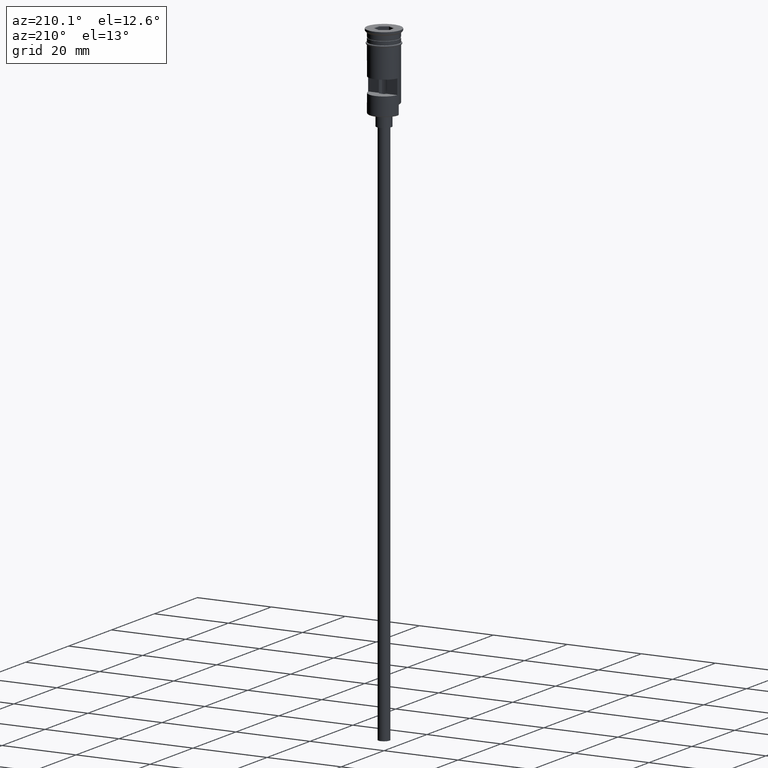
[diagram: clean part render]
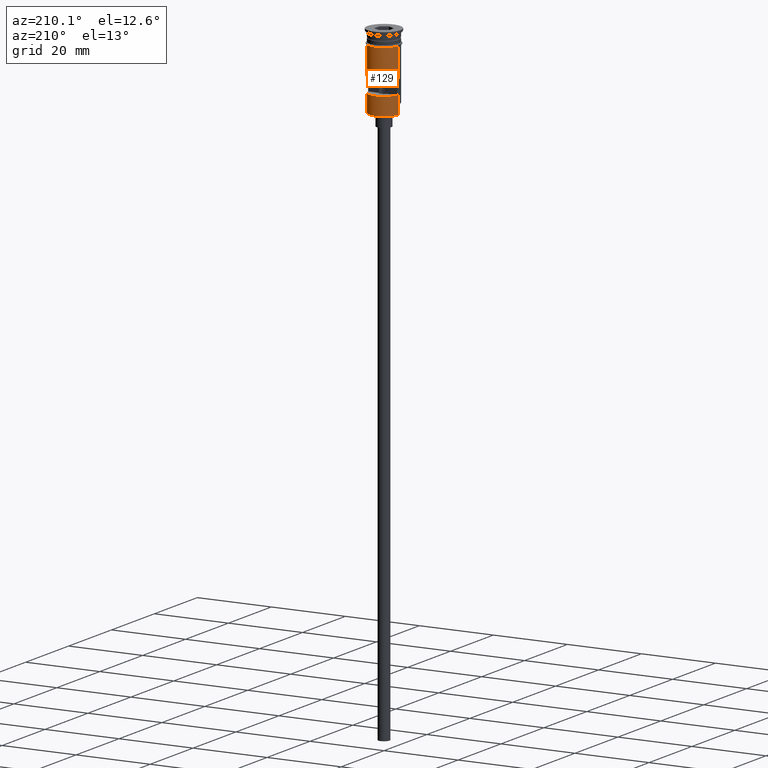
[diagram: same view with one face highlighted and labeled with its STEP entity id]
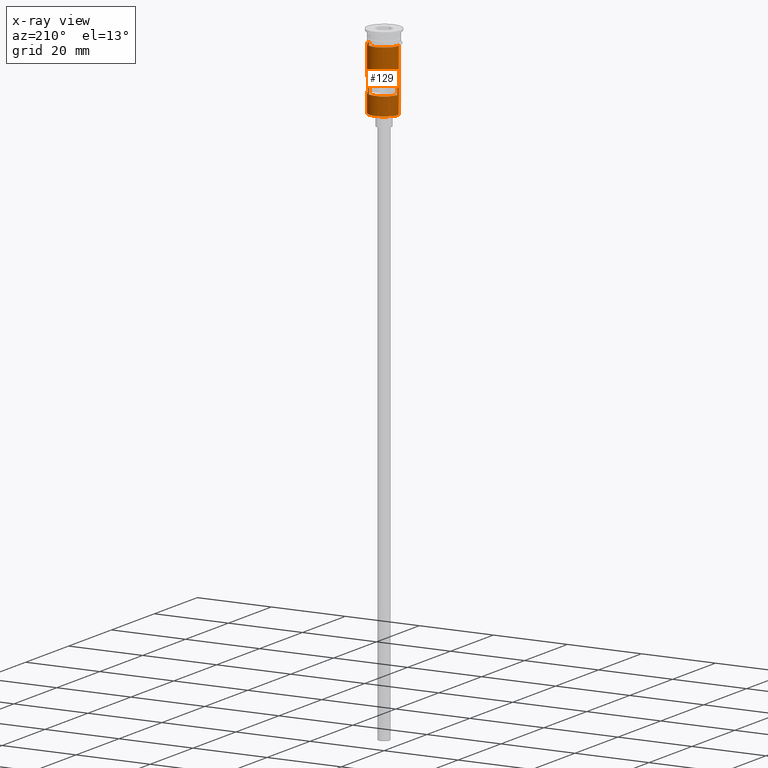
[diagram: x-ray of the same camera — body ghosted, the highlighted face saturated]
A machine part, auxiliary view. The second image highlights one B-rep face of the part: STEP entity #129.
The next image is the same camera in x-ray: the body ghosted, the highlighted face saturated — about 0% of this face is hidden behind the body in this view.
In plain terms, the highlighted cylindrical surface (edge-blend (fillet) strip) has radius 4 mm, axis along (-0, -0, 1).
Its self-contained STEP definition (entity closure, byte-faithful):
#7 = LINE ( 'NONE', #990, #341 ) ;
#44 = LINE ( 'NONE', #1409, #808 ) ;
#60 = ORIENTED_EDGE ( 'NONE', *, *, #1400, .T. ) ;
#82 = ORIENTED_EDGE ( 'NONE', *, *, #511, .F. ) ;
#97 = FACE_OUTER_BOUND ( 'NONE', #214, .T. ) ;
#112 = EDGE_CURVE ( 'NONE', #1268, #509, #830, .T. ) ;
#120 = CARTESIAN_POINT ( 'NONE',  ( 0.000000000000000000, 0.000000000000000000, -20.29999999999997584 ) ) ;
#129 = ADVANCED_FACE ( 'NONE', ( #1595, #97 ), #216, .T. ) ;
#133 = AXIS2_PLACEMENT_3D ( 'NONE', #208, #608, #981 ) ;
#157 = AXIS2_PLACEMENT_3D ( 'NONE', #715, #1211, #482 ) ;
#169 = CARTESIAN_POINT ( 'NONE',  ( 3.954743986657038413, 0.5999999999999996447, -15.50000000000000000 ) ) ;
#208 = CARTESIAN_POINT ( 'NONE',  ( 0.000000000000000000, 0.000000000000000000, -15.50000000000000000 ) ) ;
#214 = EDGE_LOOP ( 'NONE', ( #1387, #740, #586, #641, #82, #60 ) ) ;
#216 = CYLINDRICAL_SURFACE ( 'NONE', #157, 4.000000000000000000 ) ;
#254 = DIRECTION ( 'NONE',  ( 1.000000000000000000, 0.000000000000000000, 0.000000000000000000 ) ) ;
#255 = DIRECTION ( 'NONE',  ( -0.000000000000000000, -0.000000000000000000, 1.000000000000000000 ) ) ;
#281 = EDGE_CURVE ( 'NONE', #819, #1353, #283, .T. ) ;
#283 = CIRCLE ( 'NONE', #1298, 4.000000000000000000 ) ;
#316 = EDGE_CURVE ( 'NONE', #1353, #1268, #536, .T. ) ;
#341 = VECTOR ( 'NONE', #255, 1000.000000000000000 ) ;
#342 = DIRECTION ( 'NONE',  ( -0.000000000000000000, -0.000000000000000000, 1.000000000000000000 ) ) ;
#356 = CARTESIAN_POINT ( 'NONE',  ( 0.000000000000000000, 0.000000000000000000, -3.799999999999998490 ) ) ;
#359 = LINE ( 'NONE', #875, #1301 ) ;
#365 = DIRECTION ( 'NONE',  ( 0.000000000000000000, 0.000000000000000000, 1.000000000000000000 ) ) ;
#385 = DIRECTION ( 'NONE',  ( -0.000000000000000000, -0.000000000000000000, 1.000000000000000000 ) ) ;
#391 = EDGE_CURVE ( 'NONE', #752, #1213, #44, .T. ) ;
#395 = CARTESIAN_POINT ( 'NONE',  ( -3.999999999999997335, 0.000000000000000000, -20.29999999999997584 ) ) ;
#423 = CARTESIAN_POINT ( 'NONE',  ( 3.954743986657037524, 0.5999999999999996447, 0.000000000000000000 ) ) ;
#449 = CARTESIAN_POINT ( 'NONE',  ( 4.000000000000000000, 0.000000000000000000, -3.799999999999998490 ) ) ;
#482 = DIRECTION ( 'NONE',  ( 1.000000000000000000, 0.000000000000000000, 0.000000000000000000 ) ) ;
#491 = EDGE_LOOP ( 'NONE', ( #1604, #1111, #551, #587 ) ) ;
#501 = CARTESIAN_POINT ( 'NONE',  ( -4.000000000000000000, 4.898587196589412829E-16, 0.000000000000000000 ) ) ;
#509 = VERTEX_POINT ( 'NONE', #1521 ) ;
#511 = EDGE_CURVE ( 'NONE', #1429, #1197, #667, .T. ) ;
#535 = VERTEX_POINT ( 'NONE', #449 ) ;
#536 = LINE ( 'NONE', #423, #1016 ) ;
#551 = ORIENTED_EDGE ( 'NONE', *, *, #1108, .F. ) ;
#586 = ORIENTED_EDGE ( 'NONE', *, *, #1374, .F. ) ;
#587 = ORIENTED_EDGE ( 'NONE', *, *, #112, .F. ) ;
#605 = DIRECTION ( 'NONE',  ( 1.000000000000000000, 0.000000000000000000, 0.000000000000000000 ) ) ;
#608 = DIRECTION ( 'NONE',  ( 0.000000000000000000, 0.000000000000000000, 1.000000000000000000 ) ) ;
#641 = ORIENTED_EDGE ( 'NONE', *, *, #1085, .F. ) ;
#667 = LINE ( 'NONE', #911, #1018 ) ;
#691 = CARTESIAN_POINT ( 'NONE',  ( -3.999999999999997335, 0.000000000000000000, -17.79999999999998295 ) ) ;
#715 = CARTESIAN_POINT ( 'NONE',  ( 0.000000000000000000, 0.000000000000000000, 0.000000000000000000 ) ) ;
#740 = ORIENTED_EDGE ( 'NONE', *, *, #1157, .T. ) ;
#752 = VERTEX_POINT ( 'NONE', #395 ) ;
#793 = CARTESIAN_POINT ( 'NONE',  ( 4.000000000000000000, 4.898587196589412829E-16, -17.79999999999998295 ) ) ;
#808 = VECTOR ( 'NONE', #1283, 1000.000000000000000 ) ;
#812 = AXIS2_PLACEMENT_3D ( 'NONE', #356, #342, #605 ) ;
#819 = VERTEX_POINT ( 'NONE', #1413 ) ;
#830 = CIRCLE ( 'NONE', #133, 4.000000000000000000 ) ;
#865 = DIRECTION ( 'NONE',  ( -1.000000000000000000, 0.000000000000000000, 0.000000000000000000 ) ) ;
#874 = DIRECTION ( 'NONE',  ( -0.000000000000000000, 0.000000000000000000, -1.000000000000000000 ) ) ;
#875 = CARTESIAN_POINT ( 'NONE',  ( 4.000000000000000000, 0.000000000000000000, 0.000000000000000000 ) ) ;
#911 = CARTESIAN_POINT ( 'NONE',  ( 3.999999999999997335, 4.898587196589409870E-16, -20.49999999999999645 ) ) ;
#981 = DIRECTION ( 'NONE',  ( -1.000000000000000000, 0.000000000000000000, 0.000000000000000000 ) ) ;
#983 = DIRECTION ( 'NONE',  ( -0.000000000000000000, -0.000000000000000000, 1.000000000000000000 ) ) ;
#990 = CARTESIAN_POINT ( 'NONE',  ( -3.954743986657037524, 0.5999999999999996447, 0.000000000000000000 ) ) ;
#993 = VECTOR ( 'NONE', #385, 1000.000000000000000 ) ;
#1016 = VECTOR ( 'NONE', #1171, 1000.000000000000000 ) ;
#1018 = VECTOR ( 'NONE', #1415, 1000.000000000000000 ) ;
#1085 = EDGE_CURVE ( 'NONE', #1197, #535, #359, .T. ) ;
#1108 = EDGE_CURVE ( 'NONE', #509, #819, #7, .T. ) ;
#1111 = ORIENTED_EDGE ( 'NONE', *, *, #281, .F. ) ;
#1116 = LINE ( 'NONE', #501, #993 ) ;
#1139 = CARTESIAN_POINT ( 'NONE',  ( 3.999999999999997335, 4.898587196589409870E-16, -20.29999999999997584 ) ) ;
#1157 = EDGE_CURVE ( 'NONE', #1213, #1331, #1116, .T. ) ;
#1171 = DIRECTION ( 'NONE',  ( 0.000000000000000000, 0.000000000000000000, -1.000000000000000000 ) ) ;
#1197 = VERTEX_POINT ( 'NONE', #793 ) ;
#1211 = DIRECTION ( 'NONE',  ( -0.000000000000000000, -0.000000000000000000, 1.000000000000000000 ) ) ;
#1213 = VERTEX_POINT ( 'NONE', #691 ) ;
#1216 = CARTESIAN_POINT ( 'NONE',  ( -4.000000000000000000, 4.898587196589412829E-16, -3.799999999999998490 ) ) ;
#1268 = VERTEX_POINT ( 'NONE', #169 ) ;
#1283 = DIRECTION ( 'NONE',  ( -0.000000000000000000, -0.000000000000000000, 1.000000000000000000 ) ) ;
#1298 = AXIS2_PLACEMENT_3D ( 'NONE', #1365, #874, #254 ) ;
#1301 = VECTOR ( 'NONE', #983, 1000.000000000000000 ) ;
#1331 = VERTEX_POINT ( 'NONE', #1216 ) ;
#1353 = VERTEX_POINT ( 'NONE', #1356 ) ;
#1356 = CARTESIAN_POINT ( 'NONE',  ( 3.954743986657038413, 0.5999999999999996447, -11.50000000000000000 ) ) ;
#1365 = CARTESIAN_POINT ( 'NONE',  ( 0.000000000000000000, 0.000000000000000000, -11.50000000000000000 ) ) ;
#1374 = EDGE_CURVE ( 'NONE', #535, #1331, #1426, .T. ) ;
#1387 = ORIENTED_EDGE ( 'NONE', *, *, #391, .T. ) ;
#1400 = EDGE_CURVE ( 'NONE', #1429, #752, #1479, .T. ) ;
#1409 = CARTESIAN_POINT ( 'NONE',  ( -3.999999999999997335, 0.000000000000000000, -20.49999999999999645 ) ) ;
#1413 = CARTESIAN_POINT ( 'NONE',  ( -3.954743986657037524, 0.5999999999999996447, -11.50000000000000000 ) ) ;
#1415 = DIRECTION ( 'NONE',  ( -0.000000000000000000, -0.000000000000000000, 1.000000000000000000 ) ) ;
#1425 = AXIS2_PLACEMENT_3D ( 'NONE', #120, #365, #865 ) ;
#1426 = CIRCLE ( 'NONE', #812, 4.000000000000000000 ) ;
#1429 = VERTEX_POINT ( 'NONE', #1139 ) ;
#1479 = CIRCLE ( 'NONE', #1425, 4.000000000000000000 ) ;
#1521 = CARTESIAN_POINT ( 'NONE',  ( -3.954743986657037524, 0.5999999999999996447, -15.50000000000000000 ) ) ;
#1595 = FACE_BOUND ( 'NONE', #491, .T. ) ;
#1604 = ORIENTED_EDGE ( 'NONE', *, *, #316, .F. ) ;